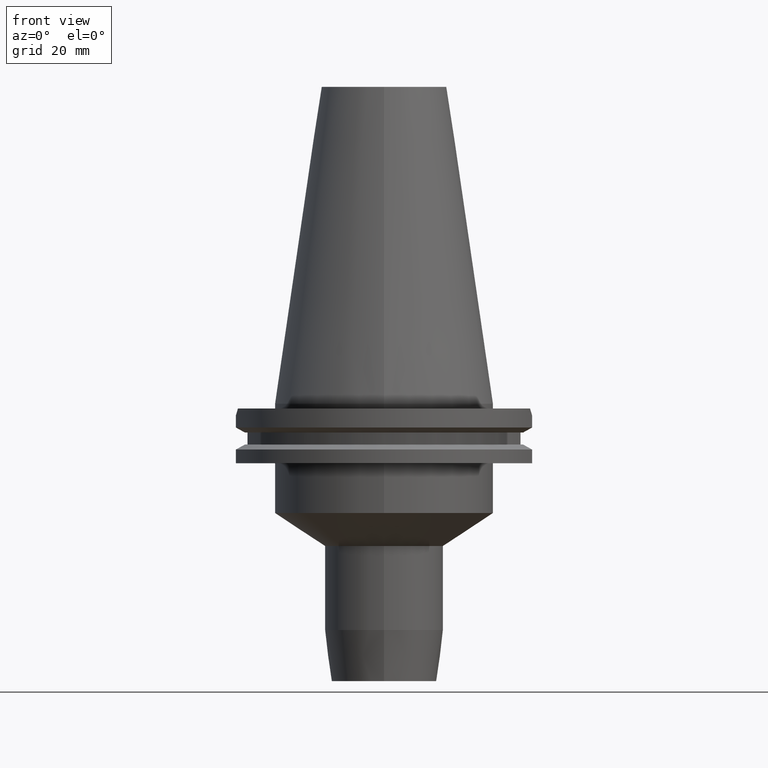
[diagram: clean part render]
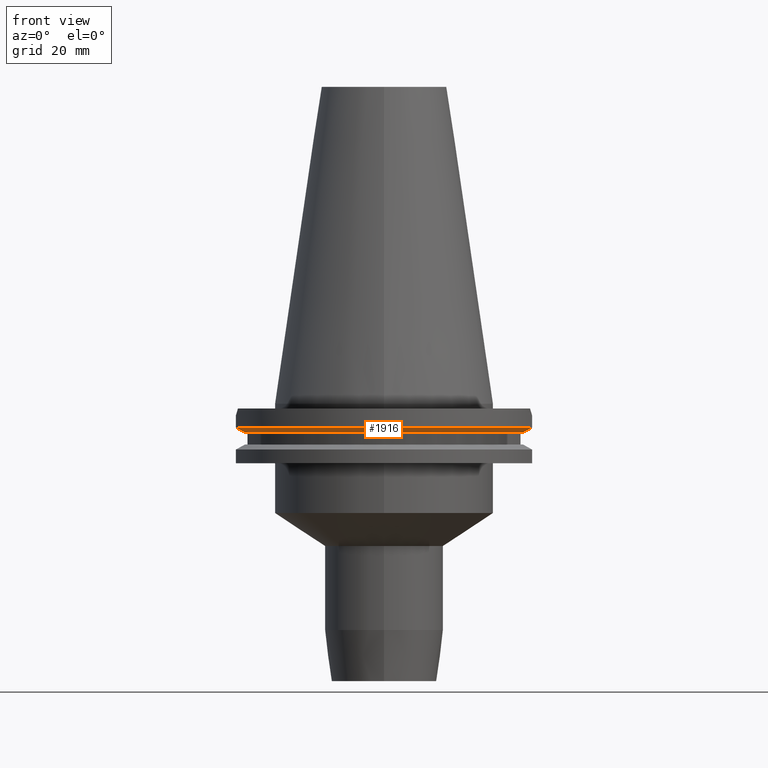
[diagram: same view with one face highlighted and labeled with its STEP entity id]
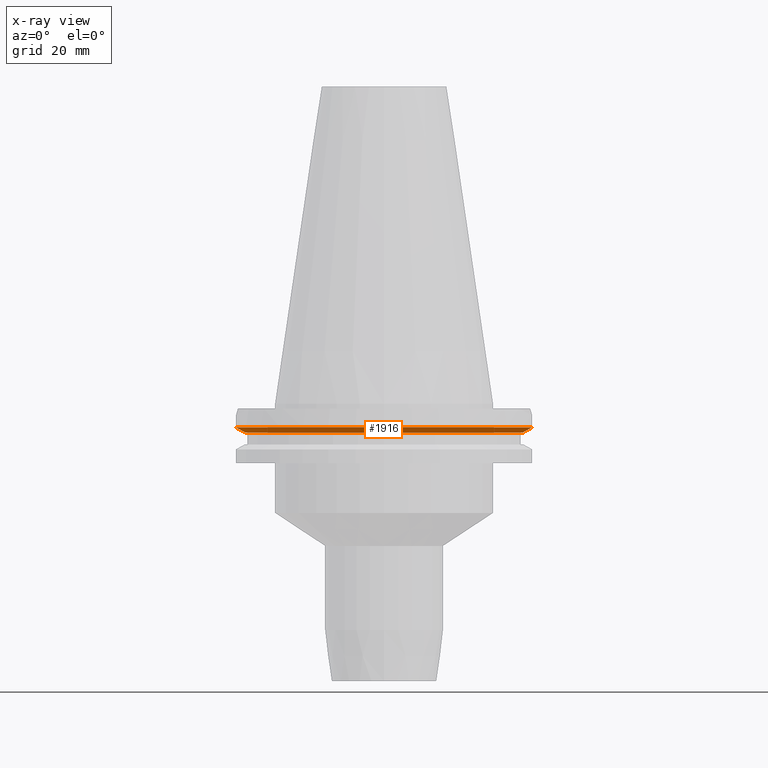
[diagram: x-ray of the same camera — body ghosted, the highlighted face saturated]
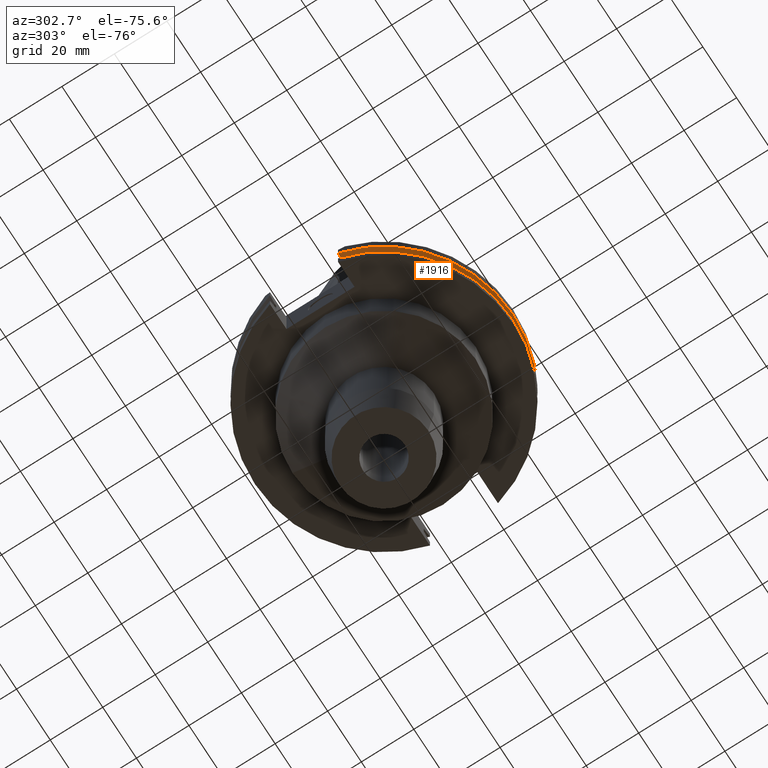
[diagram: same view with one face highlighted and labeled with its STEP entity id]
A machine part, front view. The second image highlights one B-rep face of the part: STEP entity #1916.
The next image is the same camera in x-ray: the body ghosted, the highlighted face saturated — about 0% of this face is hidden behind the body in this view.
A second angle (auxiliary view) of the same face is appended — the face is thin or edge-on in the first view.
In plain terms, the highlighted conical surface has half-angle 60 deg.
Its self-contained STEP definition (entity closure, byte-faithful):
#654=CARTESIAN_POINT('',(4.747671146204E1,-1.2955E1,-7.601333230925E0));
#655=CARTESIAN_POINT('',(4.715587471991E1,-1.2955E1,-7.780034925956E0));
#656=CARTESIAN_POINT('',(4.651400683737E1,-1.2955E1,-8.137276542138E0));
#657=CARTESIAN_POINT('',(4.555063729228E1,-1.2955E1,-8.672683119242E0));
#658=CARTESIAN_POINT('',(4.490800201650E1,-1.2955E1,-9.029294823472E0));
#659=CARTESIAN_POINT('',(4.458657636813E1,-1.2955E1,-9.207500000001E0));
#664=CARTESIAN_POINT('',(-4.458657636813E1,-1.2955E1,-9.207500000001E0));
#665=CARTESIAN_POINT('',(-4.490800201650E1,-1.2955E1,-9.029294823466E0));
#666=CARTESIAN_POINT('',(-4.555063729230E1,-1.2955E1,-8.672683119231E0));
#667=CARTESIAN_POINT('',(-4.651400683739E1,-1.2955E1,-8.137276542126E0));
#668=CARTESIAN_POINT('',(-4.715587471992E1,-1.2955E1,-7.780034925951E0));
#669=CARTESIAN_POINT('',(-4.747671146204E1,-1.2955E1,-7.601333230925E0));
#674=CARTESIAN_POINT('',(0.E0,0.E0,-7.601333230926E0));
#675=DIRECTION('',(0.E0,0.E0,1.E0));
#676=DIRECTION('',(-9.647287063661E-1,-2.632461264923E-1,0.E0));
#677=AXIS2_PLACEMENT_3D('',#674,#675,#676);
#682=CARTESIAN_POINT('',(0.E0,0.E0,-7.601333230926E0));
#683=DIRECTION('',(0.E0,0.E0,1.E0));
#684=DIRECTION('',(0.E0,-1.E0,0.E0));
#685=AXIS2_PLACEMENT_3D('',#682,#683,#684);
#713=CARTESIAN_POINT('',(0.E0,0.E0,-9.207500000003E0));
#714=DIRECTION('',(0.E0,0.E0,1.E0));
#715=DIRECTION('',(-9.602855947900E-1,-2.790189535476E-1,0.E0));
#716=AXIS2_PLACEMENT_3D('',#713,#714,#715);
#721=CARTESIAN_POINT('',(0.E0,0.E0,-9.207500000003E0));
#722=DIRECTION('',(0.E0,0.E0,1.E0));
#723=DIRECTION('',(0.E0,-1.E0,0.E0));
#724=AXIS2_PLACEMENT_3D('',#721,#722,#723);
#1345=CARTESIAN_POINT('',(4.747671146204E1,-1.2955E1,-7.601333230925E0));
#1346=VERTEX_POINT('',#1345);
#1347=CARTESIAN_POINT('',(0.E0,-4.92125E1,-7.601333230926E0));
#1348=VERTEX_POINT('',#1347);
#1349=CARTESIAN_POINT('',(-4.747671146204E1,-1.2955E1,-7.601333230926E0));
#1350=VERTEX_POINT('',#1349);
#1365=CARTESIAN_POINT('',(4.458657636813E1,-1.2955E1,-9.207500000001E0));
#1366=VERTEX_POINT('',#1365);
#1377=VERTEX_POINT('',#664);
#1409=CARTESIAN_POINT('',(-4.240378546272E-14,-4.643053755053E1,
-9.207500000003E0));
#1410=VERTEX_POINT('',#1409);
#1901=CARTESIAN_POINT('',(0.E0,0.E0,-8.404416615464E0));
#1902=DIRECTION('',(0.E0,0.E0,1.E0));
#1903=DIRECTION('',(0.E0,1.E0,0.E0));
#1904=AXIS2_PLACEMENT_3D('',#1901,#1902,#1903);
#1905=CONICAL_SURFACE('',#1904,4.782151877527E1,6.E1);
#1906=ORIENTED_EDGE('',*,*,#1853,.T.);
#1908=ORIENTED_EDGE('',*,*,#1907,.F.);
#1910=ORIENTED_EDGE('',*,*,#1909,.F.);
#1911=ORIENTED_EDGE('',*,*,#1887,.T.);
#1912=ORIENTED_EDGE('',*,*,#1814,.T.);
#1913=ORIENTED_EDGE('',*,*,#1812,.T.);
#1914=EDGE_LOOP('',(#1906,#1908,#1910,#1911,#1912,#1913));
#1915=FACE_OUTER_BOUND('',#1914,.F.);
#660=B_SPLINE_CURVE_WITH_KNOTS('',3,(#654,#655,#656,#657,#658,#659),
.UNSPECIFIED.,.F.,.F.,(4,1,1,4),(0.E0,3.333333333333E-1,6.666666666667E-1,1.E0),
.UNSPECIFIED.);
#670=B_SPLINE_CURVE_WITH_KNOTS('',3,(#664,#665,#666,#667,#668,#669),
.UNSPECIFIED.,.F.,.F.,(4,1,1,4),(0.E0,3.333333333333E-1,6.666666666667E-1,1.E0),
.UNSPECIFIED.);
#678=CIRCLE('',#677,4.92125E1);
#686=CIRCLE('',#685,4.92125E1);
#717=CIRCLE('',#716,4.643053755053E1);
#725=CIRCLE('',#724,4.643053755053E1);
#1812=EDGE_CURVE('',#1348,#1346,#686,.T.);
#1814=EDGE_CURVE('',#1350,#1348,#678,.T.);
#1853=EDGE_CURVE('',#1346,#1366,#660,.T.);
#1887=EDGE_CURVE('',#1377,#1350,#670,.T.);
#1907=EDGE_CURVE('',#1410,#1366,#725,.T.);
#1909=EDGE_CURVE('',#1377,#1410,#717,.T.);
#1916=ADVANCED_FACE('',(#1915),#1905,.T.);